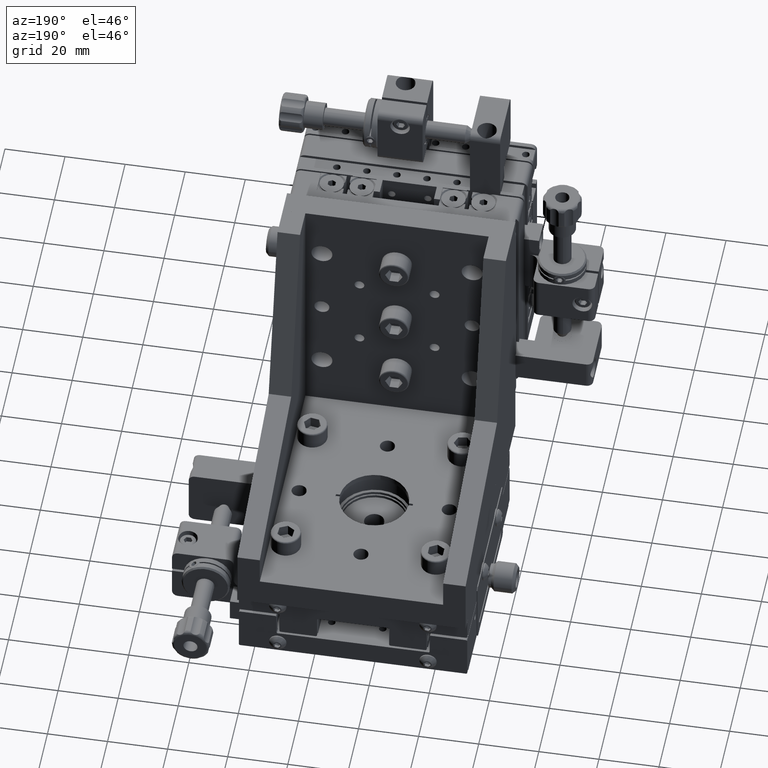
[diagram: clean part render]
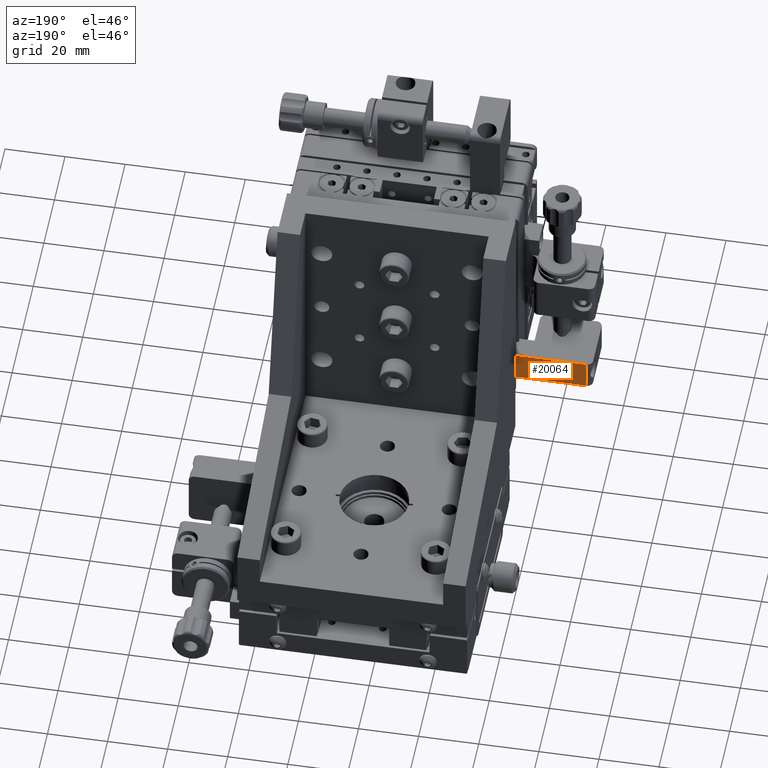
[diagram: same view with one face highlighted and labeled with its STEP entity id]
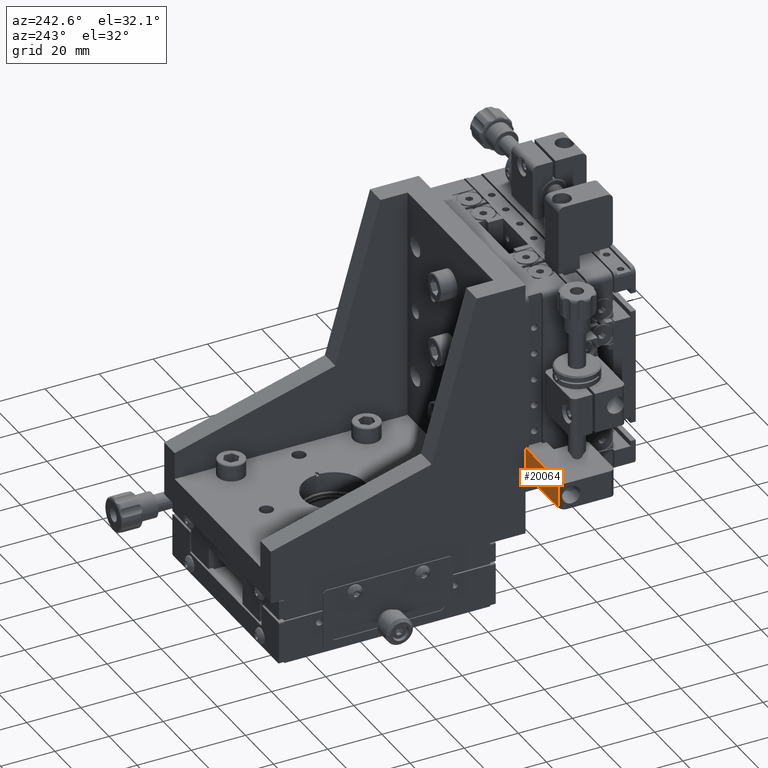
[diagram: same view with one face highlighted and labeled with its STEP entity id]
A machine part, auxiliary view. The second image highlights one B-rep face of the part: STEP entity #20064.
A second angle (auxiliary view) of the same face is appended — the face is thin or edge-on in the first view.
In plain terms, the highlighted planar face has unit normal (0, -1, 0).
Its self-contained STEP definition (entity closure, byte-faithful):
#588 = EDGE_CURVE ( 'NONE', #20647, #85806, #123375, .T. ) ;
#11444 = DIRECTION ( 'NONE',  ( -7.105123417235678000E-019, -1.608435606926826400E-014, -1.000000000000000000 ) ) ;
#13952 = DIRECTION ( 'NONE',  ( -7.105123417235678000E-019, -1.608435606926826400E-014, -1.000000000000000000 ) ) ;
#16086 = ORIENTED_EDGE ( 'NONE', *, *, #69493, .F. ) ;
#18397 = FACE_OUTER_BOUND ( 'NONE', #31572, .T. ) ;
#19321 = ORIENTED_EDGE ( 'NONE', *, *, #106132, .T. ) ;
#20064 = ADVANCED_FACE ( 'NONE', ( #18397 ), #122851, .F. ) ;
#20647 = VERTEX_POINT ( 'NONE', #93056 ) ;
#22694 = CARTESIAN_POINT ( 'NONE',  ( -31.38252653792336500, 41.74002752014513400, 113.2309604384501500 ) ) ;
#24518 = VECTOR ( 'NONE', #11444, 1000.000000000000000 ) ;
#26872 = CARTESIAN_POINT ( 'NONE',  ( -31.38252653792334000, 41.74002752014497000, 103.2309604384500800 ) ) ;
#29108 = LINE ( 'NONE', #83252, #124960 ) ;
#31572 = EDGE_LOOP ( 'NONE', ( #60820, #16086, #89728, #19321 ) ) ;
#32296 = DIRECTION ( 'NONE',  ( 7.105123417235678000E-019, 1.608435606926826400E-014, 1.000000000000000000 ) ) ;
#36389 = VERTEX_POINT ( 'NONE', #79661 ) ;
#42807 = DIRECTION ( 'NONE',  ( 1.573452406495675700E-017, -1.000000000000000000, 1.608435606926826400E-014 ) ) ;
#54413 = CARTESIAN_POINT ( 'NONE',  ( -31.38252653792336500, 41.74002752014513400, 113.2309604384501500 ) ) ;
#60244 = EDGE_CURVE ( 'NONE', #90514, #36389, #126624, .T. ) ;
#60820 = ORIENTED_EDGE ( 'NONE', *, *, #60244, .T. ) ;
#69493 = EDGE_CURVE ( 'NONE', #85806, #36389, #106210, .T. ) ;
#69897 = VECTOR ( 'NONE', #99837, 1000.000000000000000 ) ;
#71421 = CARTESIAN_POINT ( 'NONE',  ( -54.88252653792330400, 41.74002752014504100, 113.2309604384500700 ) ) ;
#76112 = VECTOR ( 'NONE', #93175, 1000.000000000000000 ) ;
#79661 = CARTESIAN_POINT ( 'NONE',  ( -54.88252653792327600, 41.74002752014487800, 103.2309604384501700 ) ) ;
#83252 = CARTESIAN_POINT ( 'NONE',  ( -31.38252653792336500, 41.74002752014513400, 113.2309604384501500 ) ) ;
#85019 = AXIS2_PLACEMENT_3D ( 'NONE', #22694, #42807, #32296 ) ;
#85806 = VERTEX_POINT ( 'NONE', #111405 ) ;
#89728 = ORIENTED_EDGE ( 'NONE', *, *, #588, .F. ) ;
#90514 = VERTEX_POINT ( 'NONE', #118586 ) ;
#93056 = CARTESIAN_POINT ( 'NONE',  ( -31.38252653792336500, 41.74002752014513400, 113.2309604384501500 ) ) ;
#93175 = DIRECTION ( 'NONE',  ( -1.000000000000000000, -1.573452406497301500E-017, 7.105123421004879800E-019 ) ) ;
#99837 = DIRECTION ( 'NONE',  ( -1.000000000000000000, -1.573452406497301500E-017, 7.105123421004879800E-019 ) ) ;
#106132 = EDGE_CURVE ( 'NONE', #20647, #90514, #29108, .T. ) ;
#106210 = LINE ( 'NONE', #71421, #24518 ) ;
#111405 = CARTESIAN_POINT ( 'NONE',  ( -54.88252653792330400, 41.74002752014504100, 113.2309604384500700 ) ) ;
#118586 = CARTESIAN_POINT ( 'NONE',  ( -31.38252653792334000, 41.74002752014497000, 103.2309604384500800 ) ) ;
#122851 = PLANE ( 'NONE',  #85019 ) ;
#123375 = LINE ( 'NONE', #54413, #76112 ) ;
#124960 = VECTOR ( 'NONE', #13952, 1000.000000000000000 ) ;
#126624 = LINE ( 'NONE', #26872, #69897 ) ;